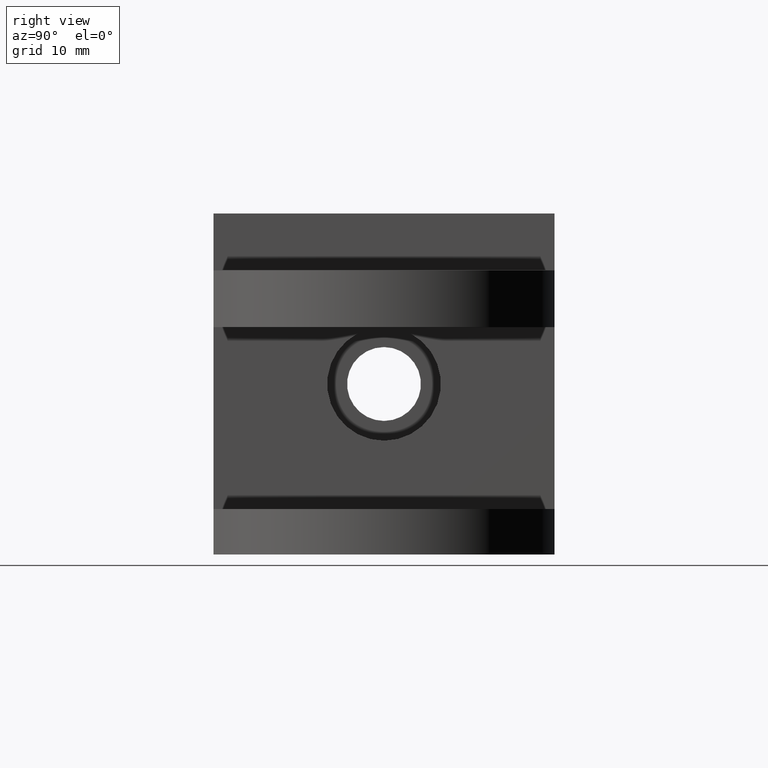
[diagram: clean part render]
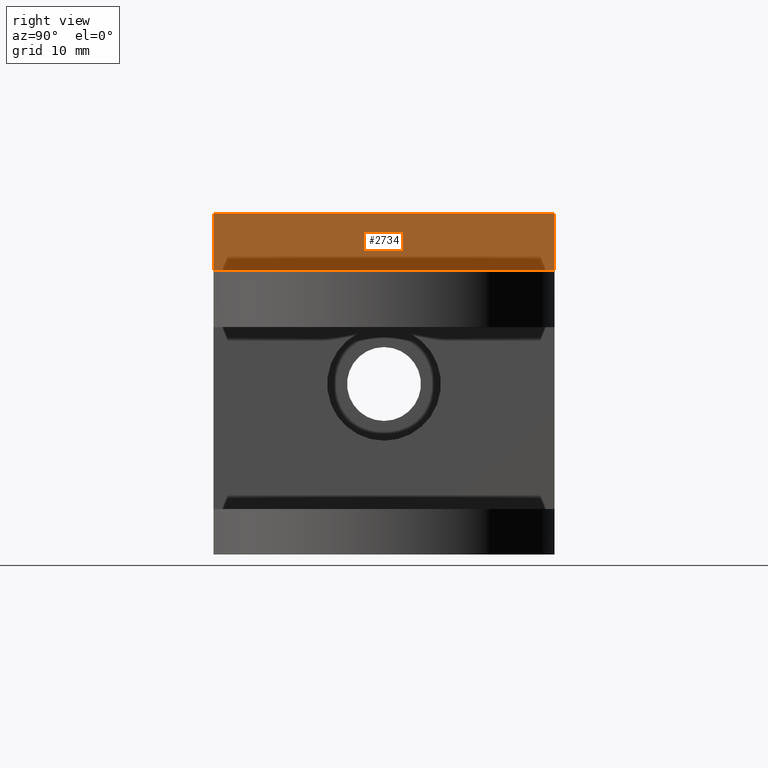
[diagram: same view with one face highlighted and labeled with its STEP entity id]
A machine part, right view. The second image highlights one B-rep face of the part: STEP entity #2734.
In plain terms, the highlighted planar face has unit normal (-1, 0, 0).
Its self-contained STEP definition (entity closure, byte-faithful):
#61 = CARTESIAN_POINT ( 'NONE',  ( 14.00000000800000200, 30.00000000000000000, -15.00000000000000000 ) ) ;
#62 = DIRECTION ( 'NONE',  ( -0.0000000000000000000, -0.0000000000000000000, 1.000000000000000000 ) ) ;
#63 = CARTESIAN_POINT ( 'NONE',  ( 14.00000000000000000, 15.00000000000000000, 0.0000000000000000000 ) ) ;
#64 = DIRECTION ( 'NONE',  ( -0.0000000000000000000, -1.000000000000000000, -0.0000000000000000000 ) ) ;
#157 = VERTEX_POINT ( 'NONE', #3899 ) ;
#185 = VERTEX_POINT ( 'NONE', #1689 ) ;
#200 = VERTEX_POINT ( 'NONE', #383 ) ;
#208 = VERTEX_POINT ( 'NONE', #391 ) ;
#245 = FACE_OUTER_BOUND ( 'NONE', #2116, .T. ) ;
#383 = CARTESIAN_POINT ( 'NONE',  ( 14.00000000400000000, 0.0000000000000000000, -5.000000006666666300 ) ) ;
#391 = CARTESIAN_POINT ( 'NONE',  ( 14.00000000533333600, 30.00000000000000000, 0.0000000000000000000 ) ) ;
#772 = PLANE ( 'NONE',  #3691 ) ;
#773 = CARTESIAN_POINT ( 'NONE',  ( 14.00000000000000000, 0.0000000000000000000, -5.000000000000000000 ) ) ;
#774 = DIRECTION ( 'NONE',  ( -1.000000000000000000, 0.0000000000000000000, 0.0000000000000000000 ) ) ;
#775 = DIRECTION ( 'NONE',  ( 0.0000000000000000000, 0.0000000000000000000, 1.000000000000000000 ) ) ;
#1434 = LINE ( 'NONE', #61, #1435 ) ;
#1435 = VECTOR ( 'NONE', #62, 1000.000000000000000 ) ;
#1436 = LINE ( 'NONE', #63, #1437 ) ;
#1437 = VECTOR ( 'NONE', #64, 1000.000000000000000 ) ;
#1451 = EDGE_CURVE ( 'NONE', #157, #208, #1434, .T. ) ;
#1452 = EDGE_CURVE ( 'NONE', #208, #185, #1436, .T. ) ;
#1689 = CARTESIAN_POINT ( 'NONE',  ( 14.00000000533333600, 0.0000000000000000000, 0.0000000000000000000 ) ) ;
#1816 = EDGE_CURVE ( 'NONE', #200, #185, #3357, .T. ) ;
#1817 = EDGE_CURVE ( 'NONE', #200, #157, #3359, .T. ) ;
#2116 = EDGE_LOOP ( 'NONE', ( #2565, #2564, #2568, #2567 ) ) ;
#2564 = ORIENTED_EDGE ( 'NONE', *, *, #1452, .T. ) ;
#2565 = ORIENTED_EDGE ( 'NONE', *, *, #1451, .T. ) ;
#2567 = ORIENTED_EDGE ( 'NONE', *, *, #1817, .T. ) ;
#2568 = ORIENTED_EDGE ( 'NONE', *, *, #1816, .F. ) ;
#2734 = ADVANCED_FACE ( 'NONE', ( #245 ), #772, .F. ) ;
#3151 = CARTESIAN_POINT ( 'NONE',  ( 14.00000000800000200, 0.0000000000000000000, -15.00000000000000000 ) ) ;
#3152 = DIRECTION ( 'NONE',  ( -0.0000000000000000000, -0.0000000000000000000, 1.000000000000000000 ) ) ;
#3153 = CARTESIAN_POINT ( 'NONE',  ( 14.00000000000000000, 15.00000000000000000, -5.000000000000000000 ) ) ;
#3154 = DIRECTION ( 'NONE',  ( 0.0000000000000000000, 1.000000000000000000, 0.0000000000000000000 ) ) ;
#3357 = LINE ( 'NONE', #3151, #3358 ) ;
#3358 = VECTOR ( 'NONE', #3152, 1000.000000000000000 ) ;
#3359 = LINE ( 'NONE', #3153, #3360 ) ;
#3360 = VECTOR ( 'NONE', #3154, 1000.000000000000000 ) ;
#3691 = AXIS2_PLACEMENT_3D ( 'NONE', #773, #774, #775 ) ;
#3899 = CARTESIAN_POINT ( 'NONE',  ( 14.00000000533333600, 30.00000000000000000, -5.000000006666666300 ) ) ;